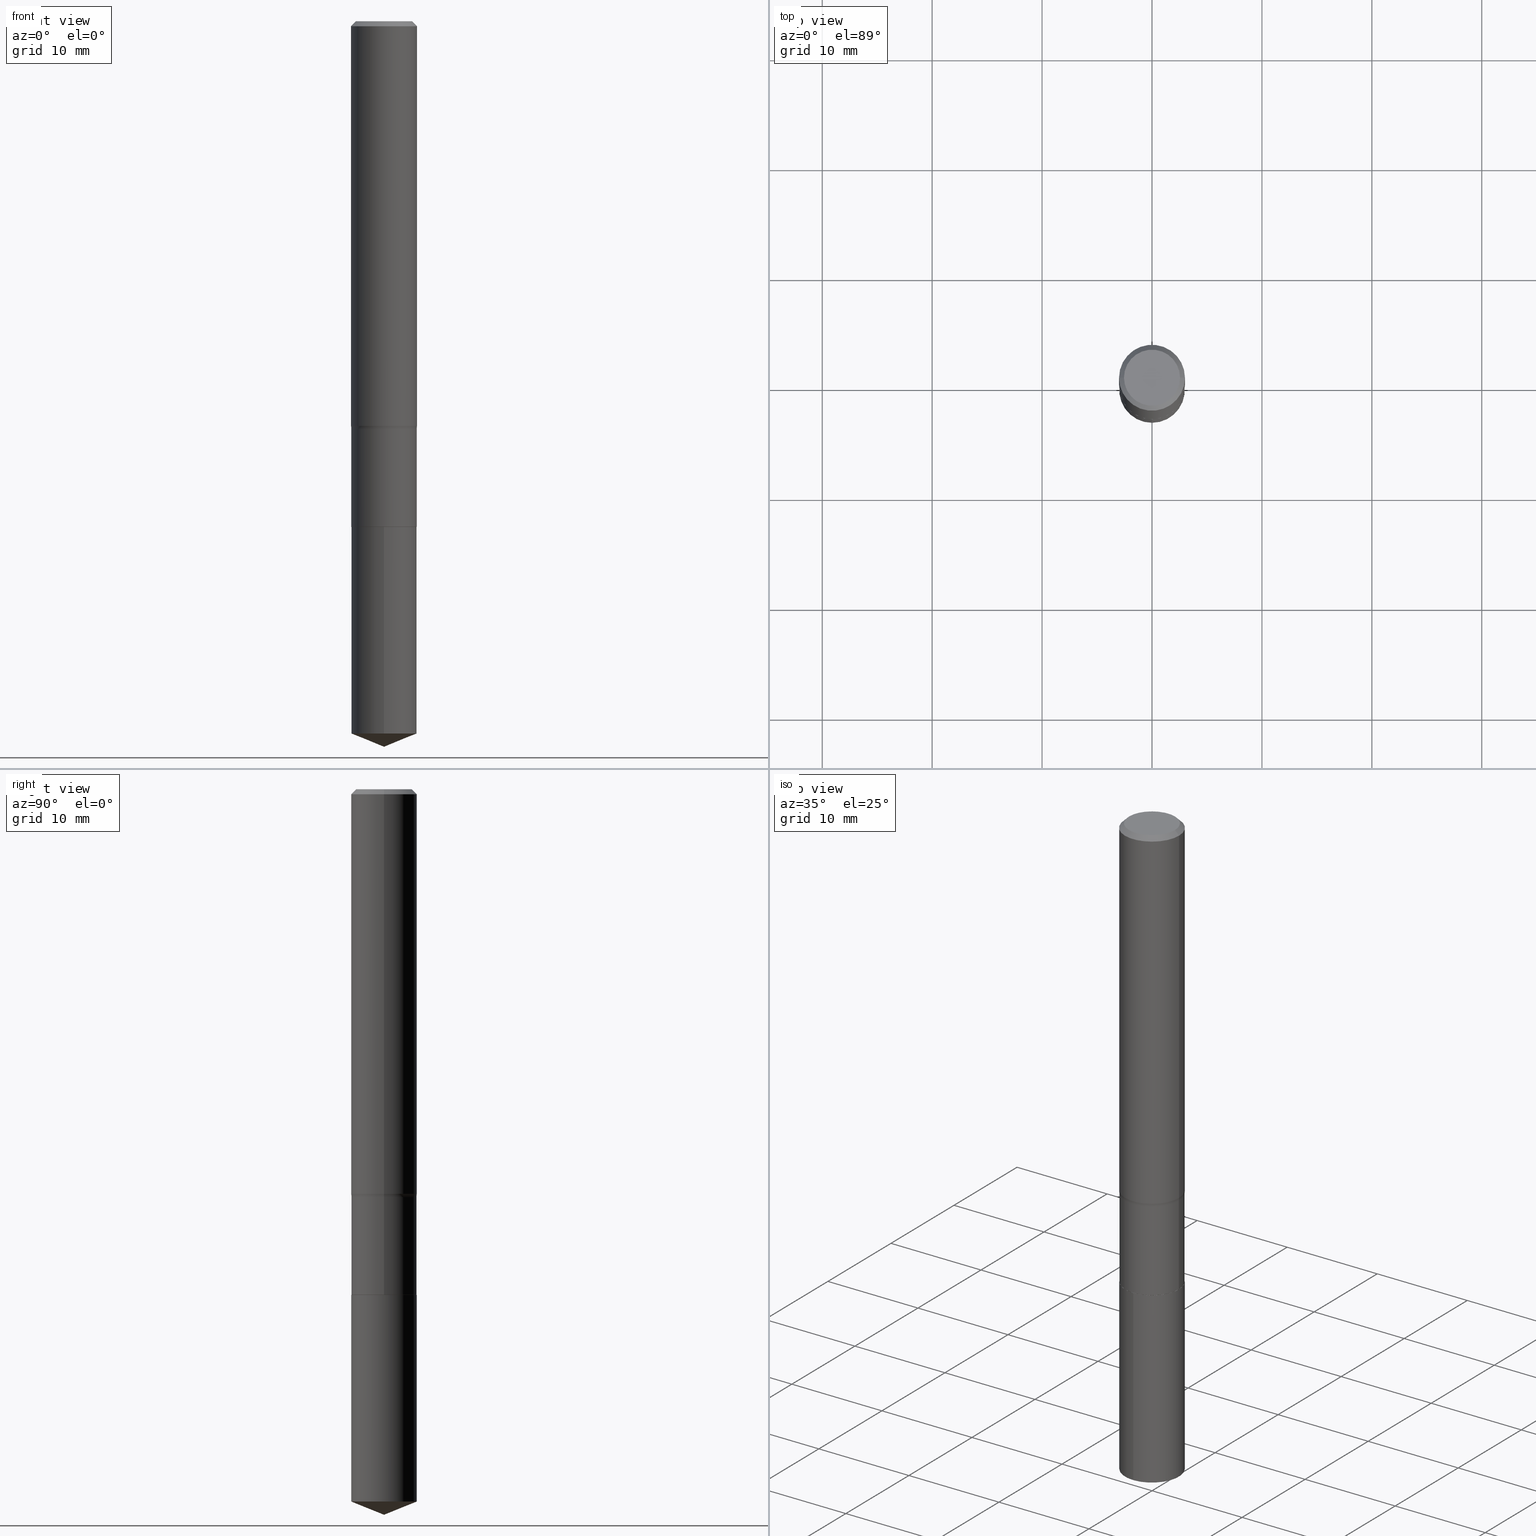
[diagram: canonical four-view strip — front | top / right | iso, engineering-drawing reading convention]
A machine part, canonical four-view strip (front | top / right | iso — engineering-drawing reading convention). The complete STEP part file that produces these views, byte-faithful:
ISO-10303-21;
HEADER;
FILE_DESCRIPTION (( 'STEP AP203' ),
    '1' );
FILE_NAME ('56809.STEP',
    '2024-04-19T14:01:48',
    ( '' ),
    ( '' ),
    'SwSTEP 2.0',
    'SolidWorks 2023',
    '' );
FILE_SCHEMA (( 'CONFIG_CONTROL_DESIGN' ));
ENDSEC;

DATA;
#1 = ORIENTED_EDGE ( 'NONE', *, *, #164, .F. ) ;
#2 = EDGE_CURVE ( 'NONE', #341, #32, #288, .T. ) ;
#3 = ORIENTED_EDGE ( 'NONE', *, *, #126, .T. ) ;
#4 = ORIENTED_EDGE ( 'NONE', *, *, #459, .T. ) ;
#5 = CARTESIAN_POINT ( 'NONE',  ( 8.327560863108815843E-16, 0.1171999999999936842, -1.811000000000000165 ) ) ;
#6 = DIRECTION ( 'NONE',  ( -6.982962677686265922E-15, -1.000000000000000000, 2.330928322239132474E-15 ) ) ;
#7 = EDGE_LOOP ( 'NONE', ( #182, #39 ) ) ;
#8 = CARTESIAN_POINT ( 'NONE',  ( -8.992226310692543550E-28, 1.283901078686414336E-13, 36.77167874015748339 ) ) ;
#9 = AXIS2_PLACEMENT_3D ( 'NONE', #125, #286, #280 ) ;
#10 = EDGE_CURVE ( 'NONE', #118, #27, #484, .T. ) ;
#11 = ORIENTED_EDGE ( 'NONE', *, *, #38, .T. ) ;
#12 = DIRECTION ( 'NONE',  ( -6.982962677686265922E-15, -1.000000000000000000, 4.661856644478264948E-15 ) ) ;
#13 = CARTESIAN_POINT ( 'NONE',  ( 4.428744008001282238E-29, -6.323072704644935995E-15, -1.810999999999999943 ) ) ;
#14 = FACE_OUTER_BOUND ( 'NONE', #80, .T. ) ;
#15 = LOCAL_TIME ( 10, 1, 48.00000000000000000, #482 ) ;
#16 = DATE_TIME_ROLE ( 'classification_date' ) ;
#17 = FACE_OUTER_BOUND ( 'NONE', #225, .T. ) ;
#18 = DATE_AND_TIME ( #478, #447 ) ;
#19 = CYLINDRICAL_SURFACE ( 'NONE', #94, 0.1181000000000001077 ) ;
#20 = DIRECTION ( 'NONE',  ( 6.982962677686265922E-15, 1.000000000000000000, -3.491545558060868781E-15 ) ) ;
#21 = ORIENTED_EDGE ( 'NONE', *, *, #270, .T. ) ;
#22 = ADVANCED_FACE ( 'NONE', ( #199 ), #344, .T. ) ;
#23 = VERTEX_POINT ( 'NONE', #463 ) ;
#24 = ORGANIZATION ( 'UNSPECIFIED', 'UNSPECIFIED', '' ) ;
#25 = FACE_OUTER_BOUND ( 'NONE', #57, .T. ) ;
#26 =( NAMED_UNIT ( * ) PLANE_ANGLE_UNIT ( ) SI_UNIT ( $, .RADIAN. ) );
#27 = VERTEX_POINT ( 'NONE', #379 ) ;
#28 = VECTOR ( 'NONE', #88, 39.37007874015748143 ) ;
#29 = AXIS2_PLACEMENT_3D ( 'NONE', #338, #304, #416 ) ;
#30 = VERTEX_POINT ( 'NONE', #389 ) ;
#31 = ADVANCED_FACE ( 'NONE', ( #431 ), #36, .T. ) ;
#32 = VERTEX_POINT ( 'NONE', #315 ) ;
#33 = LENGTH_MEASURE_WITH_UNIT ( LENGTH_MEASURE( 0.02539999999999999897 ), #369 );
#34 = CYLINDRICAL_SURFACE ( 'NONE', #129, 0.1171999999999999709 ) ;
#35 = ORIENTED_EDGE ( 'NONE', *, *, #474, .T. ) ;
#36 = CYLINDRICAL_SURFACE ( 'NONE', #249, 0.1171999999999999709 ) ;
#38 = EDGE_CURVE ( 'NONE', #53, #32, #422, .T. ) ;
#37 = CARTESIAN_POINT ( 'NONE',  ( -0.1951999999999999291, -3.713376519578350927E-15, -1.460799999999999876 ) ) ;
#39 = ORIENTED_EDGE ( 'NONE', *, *, #10, .F. ) ;
#40 = LOCAL_TIME ( 10, 1, 48.00000000000000000, #180 ) ;
#41 = CARTESIAN_POINT ( 'NONE',  ( 9.721685407353558503E-46, -1.387999024809845952E-31, -3.975387207052179891E-17 ) ) ;
#42 = ORIENTED_EDGE ( 'NONE', *, *, #46, .T. ) ;
#43 = CARTESIAN_POINT ( 'NONE',  ( -8.184032258247860819E-16, -0.1172000000000063130, -1.810999999999999721 ) ) ;
#44 = DIRECTION ( 'NONE',  ( -2.445468806185136597E-29, 3.491481338843145583E-15, 1.000000000000000000 ) ) ;
#45 = DIRECTION ( 'NONE',  ( 1.000000000000000000, -6.982962677686266711E-15, 4.879445411049954809E-29 ) ) ;
#46 = EDGE_CURVE ( 'NONE', #147, #53, #217, .T. ) ;
#47 = ORIENTED_EDGE ( 'NONE', *, *, #164, .T. ) ;
#48 = CONICAL_SURFACE ( 'NONE', #56, 0.1166999999999999982, 0.7853981633975336552 ) ;
#49 = DIRECTION ( 'NONE',  ( -1.000000000000000000, 6.982962677686266711E-15, 0.000000000000000000 ) ) ;
#50 = LINE ( 'NONE', #236, #201 ) ;
#51 = DIRECTION ( 'NONE',  ( -0.7071067811866078578, 7.493145998870571886E-15, 0.7071067811864871766 ) ) ;
#52 = EDGE_CURVE ( 'NONE', #456, #30, #242, .T. ) ;
#53 = VERTEX_POINT ( 'NONE', #54 ) ;
#54 = CARTESIAN_POINT ( 'NONE',  ( 0.1171999999999999847, -7.139730189800343763E-15, -1.810499999999999998 ) ) ;
#55 = CIRCLE ( 'NONE', #432, 0.07799999999999999989 ) ;
#56 = AXIS2_PLACEMENT_3D ( 'NONE', #254, #402, #98 ) ;
#57 = EDGE_LOOP ( 'NONE', ( #475, #91 ) ) ;
#58 = CARTESIAN_POINT ( 'NONE',  ( -0.1003850000000000159, 7.319105043583386689E-16, -3.975387207052680940E-17 ) ) ;
#59 = EDGE_LOOP ( 'NONE', ( #1, #297, #138, #345 ) ) ;
#60 = PERSON_AND_ORGANIZATION_ROLE ( 'creator' ) ;
#61 = ADVANCED_FACE ( 'NONE', ( #17 ), #127, .F. ) ;
#62 = ORIENTED_EDGE ( 'NONE', *, *, #105, .F. ) ;
#63 = PERSON_AND_ORGANIZATION ( #207, #24 ) ;
#64 = CIRCLE ( 'NONE', #408, 0.07799999999999999989 ) ;
#65 = EDGE_LOOP ( 'NONE', ( #189, #279, #117 ) ) ;
#66 = AXIS2_PLACEMENT_3D ( 'NONE', #285, #116, #239 ) ;
#67 = PERSON_AND_ORGANIZATION_ROLE ( 'design_supplier' ) ;
#68 = DIRECTION ( 'NONE',  ( -2.445468806185136877E-29, 3.491481338843145188E-15, 1.000000000000000000 ) ) ;
#69 = PERSON_AND_ORGANIZATION ( #207, #24 ) ;
#70 = DIRECTION ( 'NONE',  ( -2.445468806185136597E-29, 3.491481338843145583E-15, 1.000000000000000000 ) ) ;
#71 = ADVANCED_FACE ( 'NONE', ( #173 ), #19, .T. ) ;
#72 =( CONVERSION_BASED_UNIT ( 'INCH', #33 ) LENGTH_UNIT ( ) NAMED_UNIT ( #276 ) );
#73 = VECTOR ( 'NONE', #157, 39.37007874015748143 ) ;
#74 = ORIENTED_EDGE ( 'NONE', *, *, #313, .F. ) ;
#75 = PERSON_AND_ORGANIZATION ( #207, #24 ) ;
#76 = CARTESIAN_POINT ( 'NONE',  ( -8.184032258247860819E-16, -0.1172000000000063130, -1.810999999999999721 ) ) ;
#77 = ORIENTED_EDGE ( 'NONE', *, *, #10, .T. ) ;
#78 = EDGE_CURVE ( 'NONE', #421, #440, #293, .T. ) ;
#79 = ORIENTED_EDGE ( 'NONE', *, *, #175, .T. ) ;
#80 = EDGE_LOOP ( 'NONE', ( #452, #108, #356 ) ) ;
#81 = APPROVAL_PERSON_ORGANIZATION ( #75, #259, #267 ) ;
#82 = CARTESIAN_POINT ( 'NONE',  ( -8.184032258247681353E-16, -0.1172000000000089498, -2.551048126332119192 ) ) ;
#83 = DIRECTION ( 'NONE',  ( -2.445468806185136597E-29, 3.491481338843145583E-15, 1.000000000000000000 ) ) ;
#84 = CYLINDRICAL_SURFACE ( 'NONE', #358, 0.1181000000000001077 ) ;
#85 = DIRECTION ( 'NONE',  ( -6.982962677686266711E-15, -1.000000000000000000, 3.498761904101815330E-15 ) ) ;
#86 = AXIS2_PLACEMENT_3D ( 'NONE', #167, #469, #128 ) ;
#87 = CARTESIAN_POINT ( 'NONE',  ( -0.1171999999999999431, -4.878085365567953422E-15, -1.460799999999999876 ) ) ;
#88 = DIRECTION ( 'NONE',  ( -2.445468806185136877E-29, 3.491481338843145188E-15, 1.000000000000000000 ) ) ;
#89 = EDGE_CURVE ( 'NONE', #27, #53, #273, .T. ) ;
#90 = DIRECTION ( 'NONE',  ( 1.000000000000000000, -6.982962677686266711E-15, 4.876176775795935793E-29 ) ) ;
#91 = ORIENTED_EDGE ( 'NONE', *, *, #112, .T. ) ;
#92 = PLANE ( 'NONE',  #271 ) ;
#93 = UNCERTAINTY_MEASURE_WITH_UNIT (LENGTH_MEASURE( 1.000000000000000082E-05 ), #72, 'distance_accuracy_value', 'NONE');
#94 = AXIS2_PLACEMENT_3D ( 'NONE', #330, #134, #435 ) ;
#95 = FACE_OUTER_BOUND ( 'NONE', #420, .T. ) ;
#96 = LOCAL_TIME ( 10, 1, 48.00000000000000000, #361 ) ;
#97 = EDGE_CURVE ( 'NONE', #376, #32, #64, .T. ) ;
#98 = DIRECTION ( 'NONE',  ( 1.000000000000000000, -6.982962677686265133E-15, 0.000000000000000000 ) ) ;
#99 = PERSON_AND_ORGANIZATION_ROLE ( 'creator' ) ;
#100 = LINE ( 'NONE', #135, #434 ) ;
#101 = AXIS2_PLACEMENT_3D ( 'NONE', #8, #321, #85 ) ;
#102 = VECTOR ( 'NONE', #386, 39.37007874015748143 ) ;
#103 = PERSON_AND_ORGANIZATION ( #207, #24 ) ;
#104 = COORDINATED_UNIVERSAL_TIME_OFFSET ( 5, 0, .BEHIND. ) ;
#105 = EDGE_CURVE ( 'NONE', #492, #109, #265, .T. ) ;
#106 = CARTESIAN_POINT ( 'NONE',  ( 3.543448055378744051E-29, -5.059104712038714421E-15, -1.448985178799489182 ) ) ;
#107 = ORIENTED_EDGE ( 'NONE', *, *, #238, .F. ) ;
#108 = ORIENTED_EDGE ( 'NONE', *, *, #480, .T. ) ;
#109 = VERTEX_POINT ( 'NONE', #76 ) ;
#110 = ORIENTED_EDGE ( 'NONE', *, *, #305, .F. ) ;
#111 = CONICAL_SURFACE ( 'NONE', #292, 97.44436430772876179, 1.186823891356146188 ) ;
#112 = EDGE_CURVE ( 'NONE', #428, #407, #232, .T. ) ;
#113 = APPLICATION_PROTOCOL_DEFINITION ( 'international standard', 'config_control_design', 1994, #234 ) ;
#114 = ORIENTED_EDGE ( 'NONE', *, *, #89, .T. ) ;
#115 = DIRECTION ( 'NONE',  ( -6.982962677686266711E-15, -1.000000000000000000, 3.491481338843145583E-15 ) ) ;
#116 = DIRECTION ( 'NONE',  ( -2.445468806185136597E-29, 3.491481338843145583E-15, 1.000000000000000000 ) ) ;
#117 = ORIENTED_EDGE ( 'NONE', *, *, #136, .F. ) ;
#118 = VERTEX_POINT ( 'NONE', #335 ) ;
#119 = DIRECTION ( 'NONE',  ( -2.445423962145081395E-29, 3.491545558060868781E-15, 1.000000000000000000 ) ) ;
#120 = CIRCLE ( 'NONE', #218, 0.1171999999999999431 ) ;
#121 = TOROIDAL_SURFACE ( 'NONE', #146, 0.1951999999999999291, 0.07799999999999999989 ) ;
#123 = ADVANCED_FACE ( 'NONE', ( #145 ), #34, .T. ) ;
#122 = DIRECTION ( 'NONE',  ( -1.000000000000000000, 7.105427357601005014E-15, 0.000000000000000000 ) ) ;
#124 = DIRECTION ( 'NONE',  ( 2.445468806185136597E-29, -3.491481338843145583E-15, -1.000000000000000000 ) ) ;
#125 = CARTESIAN_POINT ( 'NONE',  ( 4.428744008001282238E-29, -6.323072704644935995E-15, -1.810999999999999943 ) ) ;
#126 = EDGE_CURVE ( 'NONE', #376, #421, #153, .T. ) ;
#127 = TOROIDAL_SURFACE ( 'NONE', #287, 0.1951999999999999291, 0.07799999999999999989 ) ;
#128 = DIRECTION ( 'NONE',  ( 1.000000000000000000, -6.982962677686265133E-15, 0.000000000000000000 ) ) ;
#129 = AXIS2_PLACEMENT_3D ( 'NONE', #191, #483, #303 ) ;
#130 = APPROVAL_DATE_TIME ( #18, #259 ) ;
#131 = FACE_OUTER_BOUND ( 'NONE', #59, .T. ) ;
#132 = EDGE_LOOP ( 'NONE', ( #179, #312, #4, #299 ) ) ;
#133 = PERSON_AND_ORGANIZATION ( #207, #24 ) ;
#134 = DIRECTION ( 'NONE',  ( -2.445468806185136597E-29, 3.491481338843145583E-15, 1.000000000000000000 ) ) ;
#135 = CARTESIAN_POINT ( 'NONE',  ( -0.1180999999999999966, 7.628363003171413738E-16, -0.01771500000000010913 ) ) ;
#136 = EDGE_CURVE ( 'NONE', #197, #30, #385, .T. ) ;
#137 = MANIFOLD_SOLID_BREP ( 'Body-Move/Copy2[1]', #366 ) ;
#138 = ORIENTED_EDGE ( 'NONE', *, *, #97, .T. ) ;
#139 = CALENDAR_DATE ( 2024, 19, 4 ) ;
#140 = CARTESIAN_POINT ( 'NONE',  ( 4.428744008001282238E-29, -6.323072704644935995E-15, -1.810999999999999943 ) ) ;
#141 = ORIENTED_EDGE ( 'NONE', *, *, #445, .F. ) ;
#142 = CC_DESIGN_PERSON_AND_ORGANIZATION_ASSIGNMENT ( #69, #371, ( #392 ) ) ;
#143 = CARTESIAN_POINT ( 'NONE',  ( 8.327560863108999253E-16, 0.1171999999999936842, -1.811000000000000165 ) ) ;
#144 = AXIS2_PLACEMENT_3D ( 'NONE', #429, #124, #49 ) ;
#145 = FACE_OUTER_BOUND ( 'NONE', #399, .T. ) ;
#146 = AXIS2_PLACEMENT_3D ( 'NONE', #291, #367, #181 ) ;
#147 = VERTEX_POINT ( 'NONE', #372 ) ;
#148 = MANIFOLD_SOLID_BREP ( 'Body-Move/Copy2[2]', #446 ) ;
#149 = FACE_OUTER_BOUND ( 'NONE', #7, .T. ) ;
#150 = EDGE_CURVE ( 'NONE', #428, #23, #311, .T. ) ;
#151 = DIRECTION ( 'NONE',  ( -2.438088387897960049E-29, 3.491481338843145188E-15, 1.000000000000000000 ) ) ;
#152 = DIRECTION ( 'NONE',  ( -2.445423962145081395E-29, 3.491545558060868781E-15, 1.000000000000000000 ) ) ;
#153 = CIRCLE ( 'NONE', #195, 0.1181000000000001909 ) ;
#154 = ORIENTED_EDGE ( 'NONE', *, *, #78, .T. ) ;
#155 = DIRECTION ( 'NONE',  ( -2.445468806185136597E-29, 3.491481338843145583E-15, 1.000000000000000000 ) ) ;
#156 = DIRECTION ( 'NONE',  ( -2.445468806185136597E-29, 3.491481338843145583E-15, 1.000000000000000000 ) ) ;
#157 = DIRECTION ( 'NONE',  ( -2.445423962145081676E-29, 3.491545558060868781E-15, 1.000000000000000000 ) ) ;
#158 = FACE_OUTER_BOUND ( 'NONE', #192, .T. ) ;
#159 = CIRCLE ( 'NONE', #468, 0.1171999999999999847 ) ;
#160 = CC_DESIGN_APPROVAL ( #230, ( #310 ) ) ;
#161 = CARTESIAN_POINT ( 'NONE',  ( 4.428744008001282238E-29, -6.323072704644935995E-15, -1.810999999999999943 ) ) ;
#162 = CARTESIAN_POINT ( 'NONE',  ( 4.427521273598189436E-29, -6.321326963975514491E-15, -1.810499999999999998 ) ) ;
#163 = DIRECTION ( 'NONE',  ( -2.445423962145081395E-29, 3.491545558060868781E-15, 1.000000000000000000 ) ) ;
#164 = EDGE_CURVE ( 'NONE', #421, #341, #55, .T. ) ;
#165 = ORIENTED_EDGE ( 'NONE', *, *, #350, .F. ) ;
#166 = SHAPE_DEFINITION_REPRESENTATION ( #346, #472 ) ;
#167 = CARTESIAN_POINT ( 'NONE',  ( 4.428744008001282238E-29, -6.323072704644935995E-15, -1.810999999999999943 ) ) ;
#168 = AXIS2_PLACEMENT_3D ( 'NONE', #231, #316, #384 ) ;
#169 = CIRCLE ( 'NONE', #374, 0.1180999999999999966 ) ;
#170 = CARTESIAN_POINT ( 'NONE',  ( -0.1180999999999999966, -1.721327181045480930E-15, -0.01771500000000010913 ) ) ;
#171 = VECTOR ( 'NONE', #275, 39.37007874015748143 ) ;
#172 = ORIENTED_EDGE ( 'NONE', *, *, #445, .T. ) ;
#173 = FACE_OUTER_BOUND ( 'NONE', #132, .T. ) ;
#174 = ORIENTED_EDGE ( 'NONE', *, *, #459, .F. ) ;
#175 = EDGE_CURVE ( 'NONE', #53, #147, #159, .T. ) ;
#176 = CARTESIAN_POINT ( 'NONE',  ( 0.1003850000000000159, -7.803837484803599345E-16, -3.975387207051662201E-17 ) ) ;
#177 = AXIS2_PLACEMENT_3D ( 'NONE', #460, #390, #318 ) ;
#178 = CARTESIAN_POINT ( 'NONE',  ( -8.992226310692543550E-28, 1.283901078686414336E-13, 36.77167874015748339 ) ) ;
#179 = ORIENTED_EDGE ( 'NONE', *, *, #78, .F. ) ;
#180 = COORDINATED_UNIVERSAL_TIME_OFFSET ( 5, 0, .BEHIND. ) ;
#181 = DIRECTION ( 'NONE',  ( 1.000000000000000000, -6.982962677686268288E-15, 4.883557194083113462E-29 ) ) ;
#182 = ORIENTED_EDGE ( 'NONE', *, *, #328, .F. ) ;
#183 = CC_DESIGN_DATE_AND_TIME_ASSIGNMENT ( #258, #359, ( #417 ) ) ;
#184 = CARTESIAN_POINT ( 'NONE',  ( 0.000000000000000000, 0.000000000000000000, 0.000000000000000000 ) ) ;
#185 = EDGE_LOOP ( 'NONE', ( #488, #110, #255, #339 ) ) ;
#186 = PRODUCT_DEFINITION_FORMATION_WITH_SPECIFIED_SOURCE ( 'ANY', '', #392, .NOT_KNOWN. ) ;
#187 = ADVANCED_FACE ( 'NONE', ( #323 ), #357, .T. ) ;
#188 = APPLICATION_PROTOCOL_DEFINITION ( 'international standard', 'config_control_design', 1994, #403 ) ;
#189 = ORIENTED_EDGE ( 'NONE', *, *, #480, .F. ) ;
#190 = CARTESIAN_POINT ( 'NONE',  ( 4.332147990156995868E-31, -6.185159191760670395E-17, -0.01771500000000010913 ) ) ;
#191 = CARTESIAN_POINT ( 'NONE',  ( 0.000000000000000000, 0.000000000000000000, 0.000000000000000000 ) ) ;
#192 = EDGE_LOOP ( 'NONE', ( #244, #381, #165, #74 ) ) ;
#193 = CARTESIAN_POINT ( 'NONE',  ( 0.000000000000000000, 0.000000000000000000, 0.000000000000000000 ) ) ;
#194 = AXIS2_PLACEMENT_3D ( 'NONE', #489, #151, #269 ) ;
#195 = AXIS2_PLACEMENT_3D ( 'NONE', #106, #70, #221 ) ;
#196 = DIRECTION ( 'NONE',  ( -1.000000000000000000, 6.982962677686266711E-15, 0.000000000000000000 ) ) ;
#197 = VERTEX_POINT ( 'NONE', #82 ) ;
#198 = FACE_OUTER_BOUND ( 'NONE', #268, .T. ) ;
#199 = FACE_OUTER_BOUND ( 'NONE', #65, .T. ) ;
#200 = DIRECTION ( 'NONE',  ( -2.445468806185136597E-29, 3.491481338843145583E-15, 1.000000000000000000 ) ) ;
#201 = VECTOR ( 'NONE', #203, 39.37007874015748143 ) ;
#202 = CC_DESIGN_PERSON_AND_ORGANIZATION_ASSIGNMENT ( #212, #215, ( #310 ) ) ;
#203 = DIRECTION ( 'NONE',  ( -2.445468806185136877E-29, 3.491481338843145188E-15, 1.000000000000000000 ) ) ;
#204 = ORIENTED_EDGE ( 'NONE', *, *, #2, .F. ) ;
#205 = FACE_OUTER_BOUND ( 'NONE', #491, .T. ) ;
#206 = LINE ( 'NONE', #333, #441 ) ;
#207 = PERSON ( 'UNSPECIFIED', 'UNSPECIFIED', 'UNSPECIFIED', ('UNSPECIFIED'), ('UNSPECIFIED'), ('UNSPECIFIED') ) ;
#208 = ORIENTED_EDGE ( 'NONE', *, *, #350, .T. ) ;
#209 = CARTESIAN_POINT ( 'NONE',  ( 0.1166999999999999982, -7.137984449130923049E-15, -1.810999999999999943 ) ) ;
#210 = CC_DESIGN_APPROVAL ( #259, ( #417 ) ) ;
#211 = EDGE_CURVE ( 'NONE', #440, #23, #423, .T. ) ;
#212 = PERSON_AND_ORGANIZATION ( #207, #24 ) ;
#213 = DIRECTION ( 'NONE',  ( -2.445468806185136597E-29, 3.491481338843145583E-15, 1.000000000000000000 ) ) ;
#214 = CARTESIAN_POINT ( 'NONE',  ( -0.1181000000000001909, -4.219953741106035435E-15, -1.448985178799489182 ) ) ;
#215 = PERSON_AND_ORGANIZATION_ROLE ( 'classification_officer' ) ;
#216 = ORIENTED_EDGE ( 'NONE', *, *, #46, .F. ) ;
#217 = CIRCLE ( 'NONE', #336, 0.1171999999999999847 ) ;
#218 = AXIS2_PLACEMENT_3D ( 'NONE', #347, #235, #317 ) ;
#219 = ADVANCED_FACE ( 'NONE', ( #205 ), #84, .T. ) ;
#220 = SECURITY_CLASSIFICATION_LEVEL ( 'unclassified' ) ;
#221 = DIRECTION ( 'NONE',  ( 1.000000000000000000, -6.982962677686269077E-15, 0.000000000000000000 ) ) ;
#222 = ORIENTED_EDGE ( 'NONE', *, *, #439, .F. ) ;
#223 = LINE ( 'NONE', #264, #364 ) ;
#224 = CIRCLE ( 'NONE', #352, 0.1003850000000000159 ) ;
#225 = EDGE_LOOP ( 'NONE', ( #415, #47, #306, #382 ) ) ;
#226 = EDGE_CURVE ( 'NONE', #32, #341, #120, .T. ) ;
#227 = APPROVAL_STATUS ( 'not_yet_approved' ) ;
#228 = ORIENTED_EDGE ( 'NONE', *, *, #226, .F. ) ;
#229 = CARTESIAN_POINT ( 'NONE',  ( 9.721685407353558503E-46, -1.387999024809845952E-31, -3.975387207052179891E-17 ) ) ;
#231 = CARTESIAN_POINT ( 'NONE',  ( 4.428744008001282238E-29, -6.323072704644935995E-15, -1.810999999999999943 ) ) ;
#230 = APPROVAL ( #438, 'UNSPECIFIED' ) ;
#232 = CIRCLE ( 'NONE', #329, 0.1003850000000000159 ) ;
#233 = CC_DESIGN_APPROVAL ( #377, ( #186 ) ) ;
#234 = APPLICATION_CONTEXT ( 'configuration controlled 3d designs of mechanical parts and assemblies' ) ;
#235 = DIRECTION ( 'NONE',  ( -2.445468806185136597E-29, 3.491481338843145583E-15, 1.000000000000000000 ) ) ;
#236 = CARTESIAN_POINT ( 'NONE',  ( -0.1171999999999999709, 8.327560863108372108E-16, -5.764991925778747720E-30 ) ) ;
#237 = ORIENTED_EDGE ( 'NONE', *, *, #89, .F. ) ;
#238 = EDGE_CURVE ( 'NONE', #30, #492, #245, .T. ) ;
#239 = DIRECTION ( 'NONE',  ( 1.000000000000000000, -6.982962677686265133E-15, 0.000000000000000000 ) ) ;
#240 = DIRECTION ( 'NONE',  ( -2.445468806185136597E-29, 3.491481338843145583E-15, 1.000000000000000000 ) ) ;
#241 = AXIS2_PLACEMENT_3D ( 'NONE', #184, #302, #307 ) ;
#242 = LINE ( 'NONE', #251, #319 ) ;
#243 = DIRECTION ( 'NONE',  ( -2.445423962145081395E-29, 3.491545558060868781E-15, 1.000000000000000000 ) ) ;
#244 = ORIENTED_EDGE ( 'NONE', *, *, #136, .T. ) ;
#245 = LINE ( 'NONE', #5, #102 ) ;
#246 = EDGE_LOOP ( 'NONE', ( #141, #77, #114, #216 ) ) ;
#247 = CARTESIAN_POINT ( 'NONE',  ( 4.860842703676779252E-46, -6.939995124049229759E-32, -1.987693603526089945E-17 ) ) ;
#248 = ADVANCED_FACE ( 'NONE', ( #158 ), #351, .T. ) ;
#249 = AXIS2_PLACEMENT_3D ( 'NONE', #193, #155, #278 ) ;
#250 = APPROVAL_ROLE ( '' ) ;
#251 = CARTESIAN_POINT ( 'NONE',  ( 6.354353472627372781E-29, -9.072199376058768375E-15, -2.598399999999999821 ) ) ;
#252 = APPROVAL_PERSON_ORGANIZATION ( #473, #230, #250 ) ;
#253 = APPROVAL_DATE_TIME ( #470, #230 ) ;
#254 = CARTESIAN_POINT ( 'NONE',  ( 4.428744008001282238E-29, -6.323072704644935995E-15, -1.810999999999999943 ) ) ;
#255 = ORIENTED_EDGE ( 'NONE', *, *, #439, .T. ) ;
#256 = COORDINATED_UNIVERSAL_TIME_OFFSET ( 5, 0, .BEHIND. ) ;
#257 = DIRECTION ( 'NONE',  ( -2.445423962145081395E-29, 3.491545558060868781E-15, 1.000000000000000000 ) ) ;
#258 = DATE_AND_TIME ( #406, #263 ) ;
#259 = APPROVAL ( #227, 'UNSPECIFIED' ) ;
#260 = EDGE_LOOP ( 'NONE', ( #405, #42, #11, #204 ) ) ;
#261 = DATE_AND_TIME ( #139, #40 ) ;
#262 = AXIS2_PLACEMENT_3D ( 'NONE', #161, #44, #342 ) ;
#263 = LOCAL_TIME ( 10, 1, 48.00000000000000000, #256 ) ;
#264 = CARTESIAN_POINT ( 'NONE',  ( 0.1181000000000001077, -8.246878922347488542E-16, 5.758764772215005345E-30 ) ) ;
#265 = CIRCLE ( 'NONE', #168, 0.1171999999999999986 ) ;
#266 = APPROVAL_DATE_TIME ( #261, #377 ) ;
#267 = APPROVAL_ROLE ( '' ) ;
#268 = EDGE_LOOP ( 'NONE', ( #107, #444, #476, #62 ) ) ;
#269 = DIRECTION ( 'NONE',  ( 1.000000000000000000, -6.982962677686265922E-15, 4.876176775795935793E-29 ) ) ;
#270 = EDGE_CURVE ( 'NONE', #147, #341, #50, .T. ) ;
#271 = AXIS2_PLACEMENT_3D ( 'NONE', #247, #398, #360 ) ;
#272 = ORIENTED_EDGE ( 'NONE', *, *, #328, .T. ) ;
#273 = LINE ( 'NONE', #209, #411 ) ;
#274 = DIRECTION ( 'NONE',  ( -6.474490251793181784E-15, -0.9271838545667867582, 0.3746065934159133470 ) ) ;
#275 = DIRECTION ( 'NONE',  ( 0.7071067811865459074, -7.319954787623251312E-15, -0.7071067811865492381 ) ) ;
#276 = DIMENSIONAL_EXPONENTS ( 1.000000000000000000, 0.000000000000000000, 0.000000000000000000, 0.000000000000000000, 0.000000000000000000, 0.000000000000000000, 0.000000000000000000 ) ;
#277 = EDGE_CURVE ( 'NONE', #30, #197, #477, .T. ) ;
#278 = DIRECTION ( 'NONE',  ( 1.000000000000000000, -6.982962677686266711E-15, 4.876176775795935793E-29 ) ) ;
#279 = ORIENTED_EDGE ( 'NONE', *, *, #52, .T. ) ;
#280 = DIRECTION ( 'NONE',  ( 1.000000000000000000, -6.982962677686265133E-15, 0.000000000000000000 ) ) ;
#281 =( GEOMETRIC_REPRESENTATION_CONTEXT ( 3 ) GLOBAL_UNCERTAINTY_ASSIGNED_CONTEXT ( ( #93 ) ) GLOBAL_UNIT_ASSIGNED_CONTEXT ( ( #72, #26, #375 ) ) REPRESENTATION_CONTEXT ( 'NONE', 'WORKASPACE' ) );
#282 = DIRECTION ( 'NONE',  ( 1.000000000000000000, -6.982962677686262766E-15, 0.000000000000000000 ) ) ;
#283 = DESIGN_CONTEXT ( 'detailed design', #234, 'design' ) ;
#284 = CARTESIAN_POINT ( 'NONE',  ( 0.000000000000000000, 0.000000000000000000, 0.000000000000000000 ) ) ;
#285 = CARTESIAN_POINT ( 'NONE',  ( 3.572340832075246748E-29, -5.100355939782065986E-15, -1.460799999999999876 ) ) ;
#286 = DIRECTION ( 'NONE',  ( -2.445468806185136597E-29, 3.491481338843145583E-15, 1.000000000000000000 ) ) ;
#287 = AXIS2_PLACEMENT_3D ( 'NONE', #467, #213, #443 ) ;
#288 = CIRCLE ( 'NONE', #66, 0.1171999999999999431 ) ;
#289 = CARTESIAN_POINT ( 'NONE',  ( 4.428744008001282238E-29, -6.323072704644935995E-15, -1.810999999999999943 ) ) ;
#290 = DIRECTION ( 'NONE',  ( 1.000000000000000000, -6.982962677686262766E-15, 0.000000000000000000 ) ) ;
#291 = CARTESIAN_POINT ( 'NONE',  ( 3.572340832075246748E-29, -5.100355939782065986E-15, -1.460799999999999876 ) ) ;
#292 = AXIS2_PLACEMENT_3D ( 'NONE', #178, #257, #331 ) ;
#293 = LINE ( 'NONE', #300, #363 ) ;
#294 = DIRECTION ( 'NONE',  ( -0.7071067811865459074, 2.468850131082239706E-15, -0.7071067811865492381 ) ) ;
#295 = CC_DESIGN_PERSON_AND_ORGANIZATION_ASSIGNMENT ( #410, #67, ( #186 ) ) ;
#296 = CARTESIAN_POINT ( 'NONE',  ( 0.1171999999999999709, -8.184032258248302581E-16, 5.714879181232835073E-30 ) ) ;
#297 = ORIENTED_EDGE ( 'NONE', *, *, #126, .F. ) ;
#298 = DIRECTION ( 'NONE',  ( 2.445423962145081115E-29, -3.491545558060868781E-15, -1.000000000000000000 ) ) ;
#299 = ORIENTED_EDGE ( 'NONE', *, *, #211, .F. ) ;
#300 = CARTESIAN_POINT ( 'NONE',  ( -0.1181000000000001077, 8.391509709326790846E-16, -5.809262341591049389E-30 ) ) ;
#301 = AXIS2_PLACEMENT_3D ( 'NONE', #490, #152, #380 ) ;
#302 = DIRECTION ( 'NONE',  ( 0.000000000000000000, 0.000000000000000000, 1.000000000000000000 ) ) ;
#303 = DIRECTION ( 'NONE',  ( 1.000000000000000000, -6.982962677686266711E-15, 4.876176775795935793E-29 ) ) ;
#304 = DIRECTION ( 'NONE',  ( -2.445468806185136597E-29, 3.491481338843145583E-15, 1.000000000000000000 ) ) ;
#305 = EDGE_CURVE ( 'NONE', #407, #428, #224, .T. ) ;
#306 = ORIENTED_EDGE ( 'NONE', *, *, #2, .T. ) ;
#307 = DIRECTION ( 'NONE',  ( 1.000000000000000000, 0.000000000000000000, 0.000000000000000000 ) ) ;
#308 = DIRECTION ( 'NONE',  ( 1.000000000000000000, -6.982962677686270655E-15, 0.000000000000000000 ) ) ;
#309 = ORIENTED_EDGE ( 'NONE', *, *, #38, .F. ) ;
#310 = SECURITY_CLASSIFICATION ( '', '', #220 ) ;
#311 = LINE ( 'NONE', #455, #171 ) ;
#312 = ORIENTED_EDGE ( 'NONE', *, *, #465, .T. ) ;
#313 = EDGE_CURVE ( 'NONE', #197, #109, #425, .T. ) ;
#314 = EDGE_LOOP ( 'NONE', ( #368, #324, #35, #222 ) ) ;
#315 = CARTESIAN_POINT ( 'NONE',  ( 0.1171999999999999431, -5.918759165606896047E-15, -1.460799999999999876 ) ) ;
#316 = DIRECTION ( 'NONE',  ( -2.445423962145081395E-29, 3.491545558060868781E-15, 1.000000000000000000 ) ) ;
#317 = DIRECTION ( 'NONE',  ( 1.000000000000000000, -6.982962677686265133E-15, 0.000000000000000000 ) ) ;
#318 = DIRECTION ( 'NONE',  ( -6.982962677686265922E-15, -1.000000000000000000, 2.330928322239132474E-15 ) ) ;
#319 = VECTOR ( 'NONE', #437, 39.37007874015748143 ) ;
#320 = CIRCLE ( 'NONE', #453, 0.1171999999999999986 ) ;
#321 = DIRECTION ( 'NONE',  ( -2.445423962145081395E-29, 3.491545558060868781E-15, 1.000000000000000000 ) ) ;
#322 = ADVANCED_FACE ( 'NONE', ( #198 ), #354, .T. ) ;
#323 = FACE_OUTER_BOUND ( 'NONE', #185, .T. ) ;
#324 = ORIENTED_EDGE ( 'NONE', *, *, #150, .T. ) ;
#325 = DIRECTION ( 'NONE',  ( 1.000000000000000000, -6.982962677686266711E-15, 0.000000000000000000 ) ) ;
#326 = DIRECTION ( 'NONE',  ( 0.7071067811866078578, -2.468850131082888544E-15, 0.7071067811864871766 ) ) ;
#327 = AXIS2_PLACEMENT_3D ( 'NONE', #289, #163, #466 ) ;
#328 = EDGE_CURVE ( 'NONE', #27, #118, #337, .T. ) ;
#329 = AXIS2_PLACEMENT_3D ( 'NONE', #229, #156, #458 ) ;
#330 = CARTESIAN_POINT ( 'NONE',  ( 0.000000000000000000, 0.000000000000000000, 0.000000000000000000 ) ) ;
#331 = DIRECTION ( 'NONE',  ( -6.982962677686266711E-15, -1.000000000000000000, 3.498761904101815330E-15 ) ) ;
#332 = CC_DESIGN_PERSON_AND_ORGANIZATION_ASSIGNMENT ( #133, #99, ( #417 ) ) ;
#333 = CARTESIAN_POINT ( 'NONE',  ( -0.1166999999999999982, -5.493869332012898894E-15, -1.810999999999999943 ) ) ;
#334 = MECHANICAL_CONTEXT ( 'NONE', #403, 'mechanical' ) ;
#335 = CARTESIAN_POINT ( 'NONE',  ( -0.1166999999999999982, -5.491220104838787693E-15, -1.810999999999999943 ) ) ;
#336 = AXIS2_PLACEMENT_3D ( 'NONE', #479, #396, #290 ) ;
#337 = CIRCLE ( 'NONE', #9, 0.1166999999999999982 ) ;
#338 = CARTESIAN_POINT ( 'NONE',  ( 3.543448055378744051E-29, -5.059104712038714421E-15, -1.448985178799489182 ) ) ;
#339 = ORIENTED_EDGE ( 'NONE', *, *, #211, .T. ) ;
#340 = ADVANCED_FACE ( 'NONE', ( #462 ), #485, .T. ) ;
#341 = VERTEX_POINT ( 'NONE', #87 ) ;
#342 = DIRECTION ( 'NONE',  ( 1.000000000000000000, -6.982962677686265133E-15, 0.000000000000000000 ) ) ;
#343 = CONICAL_SURFACE ( 'NONE', #86, 0.1166999999999999982, 0.7853981633975336552 ) ;
#344 = CONICAL_SURFACE ( 'NONE', #101, 97.44436430772876179, 1.186823891356146188 ) ;
#345 = ORIENTED_EDGE ( 'NONE', *, *, #226, .T. ) ;
#346 = PRODUCT_DEFINITION_SHAPE ( 'NONE', 'NONE',  #417 ) ;
#347 = CARTESIAN_POINT ( 'NONE',  ( 3.572340832075246748E-29, -5.100355939782065986E-15, -1.460799999999999876 ) ) ;
#348 = EDGE_LOOP ( 'NONE', ( #208, #373 ) ) ;
#349 = DIRECTION ( 'NONE',  ( 2.445468806185136597E-29, -3.491481338843145583E-15, -1.000000000000000000 ) ) ;
#350 = EDGE_CURVE ( 'NONE', #109, #492, #320, .T. ) ;
#351 = CYLINDRICAL_SURFACE ( 'NONE', #177, 0.1171999999999999986 ) ;
#352 = AXIS2_PLACEMENT_3D ( 'NONE', #41, #388, #45 ) ;
#353 = CARTESIAN_POINT ( 'NONE',  ( 6.238475429274418212E-29, -8.906984452891117055E-15, -2.551048126332119637 ) ) ;
#354 = CYLINDRICAL_SURFACE ( 'NONE', #327, 0.1171999999999999986 ) ;
#355 = ADVANCED_FACE ( 'NONE', ( #394 ), #343, .T. ) ;
#356 = ORIENTED_EDGE ( 'NONE', *, *, #277, .F. ) ;
#357 = CONICAL_SURFACE ( 'NONE', #144, 0.1180999999999999966, 0.7853981633974459475 ) ;
#358 = AXIS2_PLACEMENT_3D ( 'NONE', #284, #240, #90 ) ;
#359 = DATE_TIME_ROLE ( 'creation_date' ) ;
#360 = DIRECTION ( 'NONE',  ( -1.000000000000000000, 6.982962677686265922E-15, -4.876176775795935793E-29 ) ) ;
#361 = COORDINATED_UNIVERSAL_TIME_OFFSET ( 5, 0, .BEHIND. ) ;
#362 = FACE_OUTER_BOUND ( 'NONE', #348, .T. ) ;
#363 = VECTOR ( 'NONE', #395, 39.37007874015748143 ) ;
#364 = VECTOR ( 'NONE', #68, 39.37007874015748143 ) ;
#365 = APPROVAL_ROLE ( '' ) ;
#366 = CLOSED_SHELL ( 'NONE', ( #248, #22, #430, #322, #426 ) ) ;
#367 = DIRECTION ( 'NONE',  ( -2.445468806185136597E-29, 3.491481338843145583E-15, 1.000000000000000000 ) ) ;
#368 = ORIENTED_EDGE ( 'NONE', *, *, #112, .F. ) ;
#369 =( LENGTH_UNIT ( ) NAMED_UNIT ( * ) SI_UNIT ( $, .METRE. ) );
#370 = CC_DESIGN_PERSON_AND_ORGANIZATION_ASSIGNMENT ( #103, #60, ( #186 ) ) ;
#371 = PERSON_AND_ORGANIZATION_ROLE ( 'design_owner' ) ;
#372 = CARTESIAN_POINT ( 'NONE',  ( -0.1171999999999999986, -4.878085365567953422E-15, -1.810499999999999998 ) ) ;
#373 = ORIENTED_EDGE ( 'NONE', *, *, #105, .T. ) ;
#374 = AXIS2_PLACEMENT_3D ( 'NONE', #190, #419, #486 ) ;
#375 =( NAMED_UNIT ( * ) SI_UNIT ( $, .STERADIAN. ) SOLID_ANGLE_UNIT ( ) );
#376 = VERTEX_POINT ( 'NONE', #436 ) ;
#377 = APPROVAL ( #448, 'UNSPECIFIED' ) ;
#378 = PLANE ( 'NONE',  #194 ) ;
#379 = CARTESIAN_POINT ( 'NONE',  ( 0.1166999999999999982, -7.137984449130923049E-15, -1.810999999999999943 ) ) ;
#380 = DIRECTION ( 'NONE',  ( -6.982962677686265922E-15, -1.000000000000000000, 4.661856644478264948E-15 ) ) ;
#381 = ORIENTED_EDGE ( 'NONE', *, *, #238, .T. ) ;
#382 = ORIENTED_EDGE ( 'NONE', *, *, #97, .F. ) ;
#383 = AXIS2_PLACEMENT_3D ( 'NONE', #353, #119, #12 ) ;
#384 = DIRECTION ( 'NONE',  ( -6.982962677686265922E-15, -1.000000000000000000, 2.330928322239132474E-15 ) ) ;
#385 = CIRCLE ( 'NONE', #301, 0.1171999999999999986 ) ;
#386 = DIRECTION ( 'NONE',  ( -2.445423962145081676E-29, 3.491545558060868781E-15, 1.000000000000000000 ) ) ;
#387 = ADVANCED_FACE ( 'NONE', ( #25 ), #92, .F. ) ;
#388 = DIRECTION ( 'NONE',  ( -2.445468806185136597E-29, 3.491481338843145583E-15, 1.000000000000000000 ) ) ;
#389 = CARTESIAN_POINT ( 'NONE',  ( 8.327560863108999253E-16, 0.1171999999999911030, -2.551048126332120081 ) ) ;
#390 = DIRECTION ( 'NONE',  ( -2.445423962145081395E-29, 3.491545558060868781E-15, 1.000000000000000000 ) ) ;
#391 = AXIS2_PLACEMENT_3D ( 'NONE', #433, #349, #196 ) ;
#392 = PRODUCT ( '56809', '56809', '', ( #334 ) ) ;
#393 = ADVANCED_FACE ( 'NONE', ( #131 ), #121, .F. ) ;
#394 = FACE_OUTER_BOUND ( 'NONE', #246, .T. ) ;
#395 = DIRECTION ( 'NONE',  ( -2.445468806185136877E-29, 3.491481338843145188E-15, 1.000000000000000000 ) ) ;
#396 = DIRECTION ( 'NONE',  ( -2.445468806185136597E-29, 3.491481338843145583E-15, 1.000000000000000000 ) ) ;
#397 = CALENDAR_DATE ( 2024, 19, 4 ) ;
#398 = DIRECTION ( 'NONE',  ( 2.438088387897960049E-29, -3.491481338843145188E-15, -1.000000000000000000 ) ) ;
#399 = EDGE_LOOP ( 'NONE', ( #79, #21, #228, #309 ) ) ;
#400 = VECTOR ( 'NONE', #274, 39.37007874015748143 ) ;
#401 = CALENDAR_DATE ( 2024, 19, 4 ) ;
#402 = DIRECTION ( 'NONE',  ( -2.445468806185136597E-29, 3.491481338843145583E-15, 1.000000000000000000 ) ) ;
#403 = APPLICATION_CONTEXT ( 'configuration controlled 3d designs of mechanical parts and assemblies' ) ;
#404 = ADVANCED_FACE ( 'NONE', ( #95 ), #48, .T. ) ;
#405 = ORIENTED_EDGE ( 'NONE', *, *, #270, .F. ) ;
#406 = CALENDAR_DATE ( 2024, 19, 4 ) ;
#407 = VERTEX_POINT ( 'NONE', #58 ) ;
#408 = AXIS2_PLACEMENT_3D ( 'NONE', #457, #115, #308 ) ;
#409 = AXIS2_PLACEMENT_3D ( 'NONE', #140, #298, #20 ) ;
#410 = PERSON_AND_ORGANIZATION ( #207, #24 ) ;
#411 = VECTOR ( 'NONE', #326, 39.37007874015748143 ) ;
#412 = CARTESIAN_POINT ( 'NONE',  ( 6.354189623237778583E-29, -9.072431978065361449E-15, -2.598399999999999821 ) ) ;
#413 = CC_DESIGN_DATE_AND_TIME_ASSIGNMENT ( #414, #16, ( #310 ) ) ;
#414 = DATE_AND_TIME ( #401, #15 ) ;
#415 = ORIENTED_EDGE ( 'NONE', *, *, #465, .F. ) ;
#416 = DIRECTION ( 'NONE',  ( 1.000000000000000000, -6.982962677686269077E-15, 0.000000000000000000 ) ) ;
#417 = PRODUCT_DEFINITION ( 'UNKNOWN', '', #186, #283 ) ;
#418 = CC_DESIGN_SECURITY_CLASSIFICATION ( #310, ( #186 ) ) ;
#419 = DIRECTION ( 'NONE',  ( -2.445468806185136597E-29, 3.491481338843145583E-15, 1.000000000000000000 ) ) ;
#420 = EDGE_LOOP ( 'NONE', ( #272, #172, #471, #237 ) ) ;
#421 = VERTEX_POINT ( 'NONE', #214 ) ;
#422 = LINE ( 'NONE', #296, #28 ) ;
#423 = CIRCLE ( 'NONE', #449, 0.1180999999999999966 ) ;
#424 = CIRCLE ( 'NONE', #29, 0.1181000000000001909 ) ;
#426 = ADVANCED_FACE ( 'NONE', ( #362 ), #481, .F. ) ;
#425 = LINE ( 'NONE', #43, #73 ) ;
#427 = CARTESIAN_POINT ( 'NONE',  ( 4.332147990156995868E-31, -6.185159191760670395E-17, -0.01771500000000010913 ) ) ;
#428 = VERTEX_POINT ( 'NONE', #176 ) ;
#429 = CARTESIAN_POINT ( 'NONE',  ( 4.332147990156995868E-31, -6.185159191760670395E-17, -0.01771500000000010913 ) ) ;
#430 = ADVANCED_FACE ( 'NONE', ( #14 ), #111, .T. ) ;
#431 = FACE_OUTER_BOUND ( 'NONE', #260, .T. ) ;
#432 = AXIS2_PLACEMENT_3D ( 'NONE', #37, #464, #122 ) ;
#433 = CARTESIAN_POINT ( 'NONE',  ( 4.332147990156995868E-31, -6.185159191760670395E-17, -0.01771500000000010913 ) ) ;
#434 = VECTOR ( 'NONE', #294, 39.37007874015748143 ) ;
#435 = DIRECTION ( 'NONE',  ( 1.000000000000000000, -6.982962677686266711E-15, 4.876176775795935793E-29 ) ) ;
#436 = CARTESIAN_POINT ( 'NONE',  ( 0.1181000000000001909, -5.883792604273464262E-15, -1.448985178799489182 ) ) ;
#437 = DIRECTION ( 'NONE',  ( 6.588037525764795235E-15, 0.9271838545667895337, 0.3746065934159069077 ) ) ;
#438 = APPROVAL_STATUS ( 'not_yet_approved' ) ;
#439 = EDGE_CURVE ( 'NONE', #407, #440, #100, .T. ) ;
#440 = VERTEX_POINT ( 'NONE', #170 ) ;
#441 = VECTOR ( 'NONE', #51, 39.37007874015748143 ) ;
#442 = PRODUCT_RELATED_PRODUCT_CATEGORY ( 'detail', '', ( #392 ) ) ;
#443 = DIRECTION ( 'NONE',  ( 1.000000000000000000, -6.982962677686268288E-15, 4.883557194083113462E-29 ) ) ;
#444 = ORIENTED_EDGE ( 'NONE', *, *, #277, .T. ) ;
#445 = EDGE_CURVE ( 'NONE', #118, #147, #206, .T. ) ;
#446 = CLOSED_SHELL ( 'NONE', ( #404, #340, #219, #61, #123, #31, #393, #71, #187, #387, #487, #355 ) ) ;
#447 = LOCAL_TIME ( 10, 1, 48.00000000000000000, #104 ) ;
#448 = APPROVAL_STATUS ( 'not_yet_approved' ) ;
#449 = AXIS2_PLACEMENT_3D ( 'NONE', #427, #83, #325 ) ;
#450 = LINE ( 'NONE', #454, #400 ) ;
#451 = ORIENTED_EDGE ( 'NONE', *, *, #474, .F. ) ;
#452 = ORIENTED_EDGE ( 'NONE', *, *, #52, .F. ) ;
#453 = AXIS2_PLACEMENT_3D ( 'NONE', #13, #243, #6 ) ;
#454 = CARTESIAN_POINT ( 'NONE',  ( 6.354189623237778583E-29, -9.072431978065361449E-15, -2.598399999999999821 ) ) ;
#455 = CARTESIAN_POINT ( 'NONE',  ( 0.1180999999999999966, -8.720764054544245267E-16, -0.01771500000000010913 ) ) ;
#456 = VERTEX_POINT ( 'NONE', #412 ) ;
#457 = CARTESIAN_POINT ( 'NONE',  ( 0.1951999999999999291, -6.463430254466424882E-15, -1.460799999999999876 ) ) ;
#458 = DIRECTION ( 'NONE',  ( 1.000000000000000000, -6.982962677686266711E-15, 4.879445411049954809E-29 ) ) ;
#459 = EDGE_CURVE ( 'NONE', #376, #23, #223, .T. ) ;
#460 = CARTESIAN_POINT ( 'NONE',  ( 4.428744008001282238E-29, -6.323072704644935995E-15, -1.810999999999999943 ) ) ;
#461 = APPROVAL_PERSON_ORGANIZATION ( #63, #377, #365 ) ;
#462 = FACE_OUTER_BOUND ( 'NONE', #314, .T. ) ;
#463 = CARTESIAN_POINT ( 'NONE',  ( 0.1180999999999999966, -8.865394841523547570E-16, -0.01771500000000010913 ) ) ;
#464 = DIRECTION ( 'NONE',  ( 7.105427357601001859E-15, 1.000000000000000000, -3.491481338843145583E-15 ) ) ;
#465 = EDGE_CURVE ( 'NONE', #421, #376, #424, .T. ) ;
#466 = DIRECTION ( 'NONE',  ( -6.982962677686265922E-15, -1.000000000000000000, 2.330928322239132474E-15 ) ) ;
#467 = CARTESIAN_POINT ( 'NONE',  ( 3.572340832075246748E-29, -5.100355939782065986E-15, -1.460799999999999876 ) ) ;
#468 = AXIS2_PLACEMENT_3D ( 'NONE', #162, #200, #282 ) ;
#469 = DIRECTION ( 'NONE',  ( -2.445468806185136597E-29, 3.491481338843145583E-15, 1.000000000000000000 ) ) ;
#470 = DATE_AND_TIME ( #397, #96 ) ;
#471 = ORIENTED_EDGE ( 'NONE', *, *, #175, .F. ) ;
#472 = ADVANCED_BREP_SHAPE_REPRESENTATION ( '56809', ( #137, #148, #241 ), #281 ) ;
#473 = PERSON_AND_ORGANIZATION ( #207, #24 ) ;
#474 = EDGE_CURVE ( 'NONE', #23, #440, #169, .T. ) ;
#475 = ORIENTED_EDGE ( 'NONE', *, *, #305, .T. ) ;
#476 = ORIENTED_EDGE ( 'NONE', *, *, #313, .T. ) ;
#477 = CIRCLE ( 'NONE', #383, 0.1171999999999999986 ) ;
#478 = CALENDAR_DATE ( 2024, 19, 4 ) ;
#479 = CARTESIAN_POINT ( 'NONE',  ( 4.427521273598189436E-29, -6.321326963975514491E-15, -1.810499999999999998 ) ) ;
#480 = EDGE_CURVE ( 'NONE', #456, #197, #450, .T. ) ;
#481 = PLANE ( 'NONE',  #409 ) ;
#482 = COORDINATED_UNIVERSAL_TIME_OFFSET ( 5, 0, .BEHIND. ) ;
#483 = DIRECTION ( 'NONE',  ( -2.445468806185136597E-29, 3.491481338843145583E-15, 1.000000000000000000 ) ) ;
#484 = CIRCLE ( 'NONE', #262, 0.1166999999999999982 ) ;
#485 = CONICAL_SURFACE ( 'NONE', #391, 0.1180999999999999966, 0.7853981633974459475 ) ;
#486 = DIRECTION ( 'NONE',  ( 1.000000000000000000, -6.982962677686266711E-15, 0.000000000000000000 ) ) ;
#487 = ADVANCED_FACE ( 'NONE', ( #149 ), #378, .F. ) ;
#488 = ORIENTED_EDGE ( 'NONE', *, *, #150, .F. ) ;
#489 = CARTESIAN_POINT ( 'NONE',  ( 4.428744008001282238E-29, -6.323072704644935995E-15, -1.810999999999999943 ) ) ;
#490 = CARTESIAN_POINT ( 'NONE',  ( 6.238475429274418212E-29, -8.906984452891117055E-15, -2.551048126332119637 ) ) ;
#491 = EDGE_LOOP ( 'NONE', ( #3, #154, #451, #174 ) ) ;
#492 = VERTEX_POINT ( 'NONE', #143 ) ;
ENDSEC;
END-ISO-10303-21;
